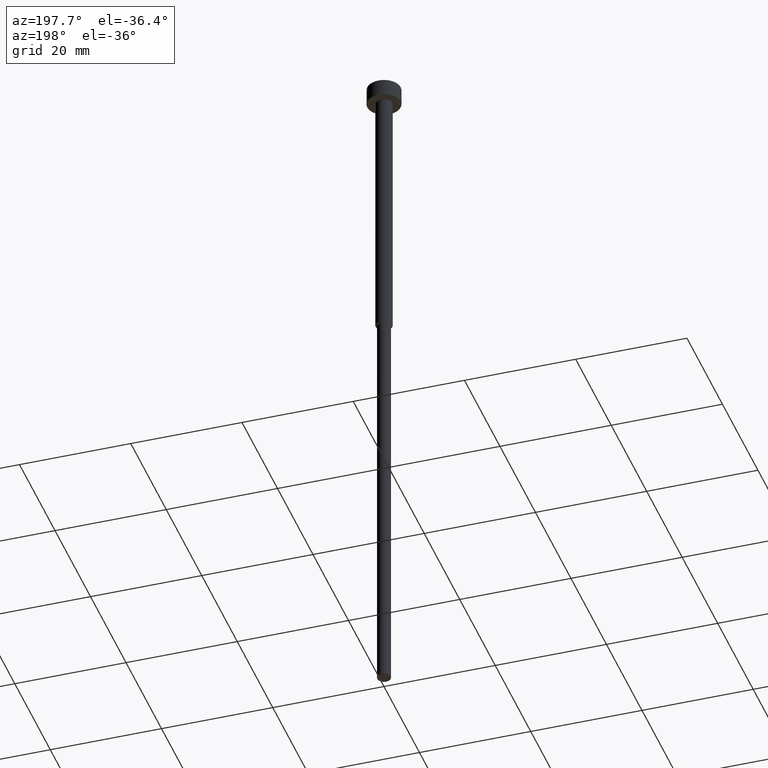
[diagram: clean part render]
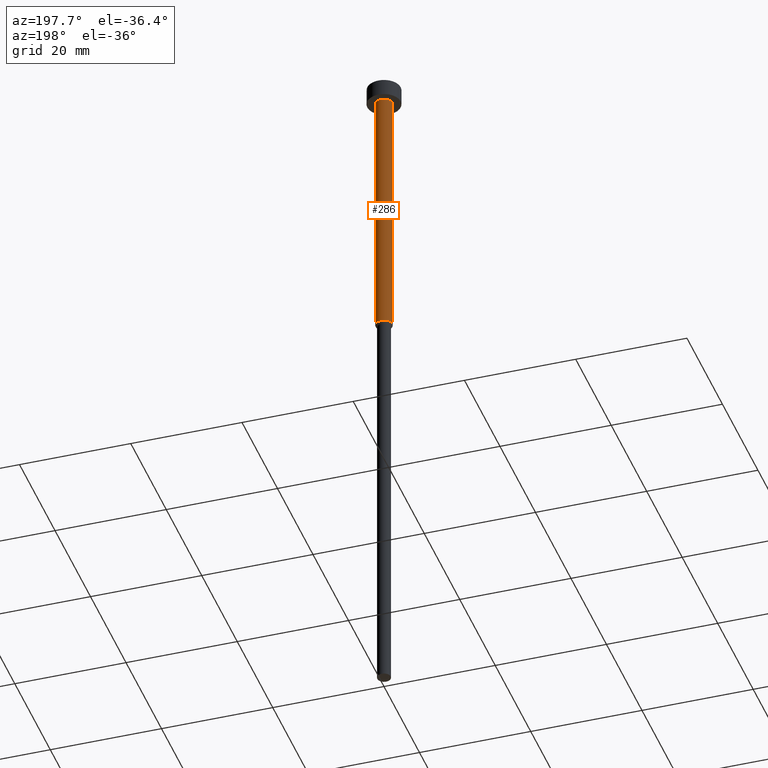
[diagram: same view with one face highlighted and labeled with its STEP entity id]
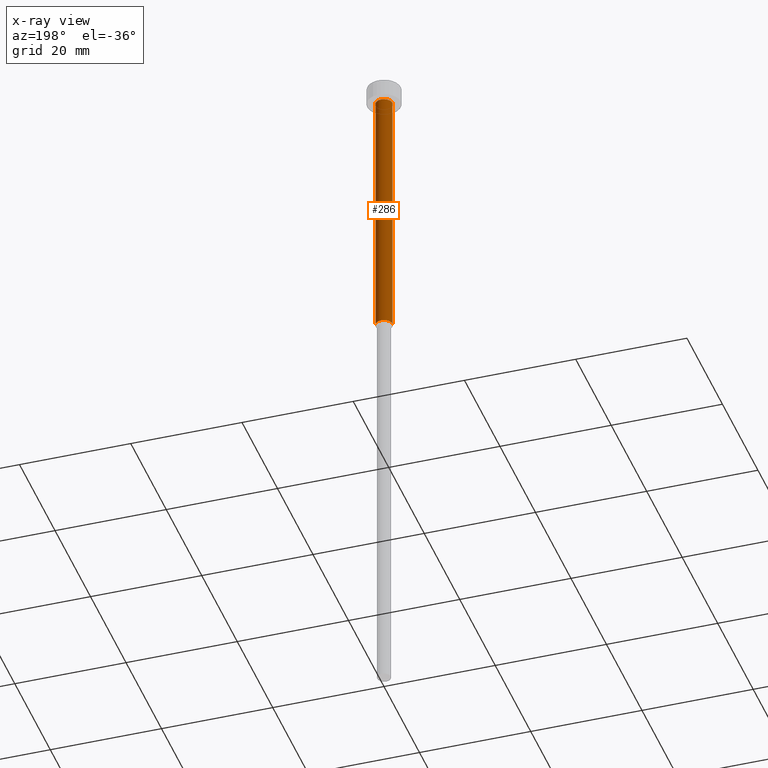
[diagram: x-ray of the same camera — body ghosted, the highlighted face saturated]
A machine part, auxiliary view. The second image highlights one B-rep face of the part: STEP entity #286.
The next image is the same camera in x-ray: the body ghosted, the highlighted face saturated — about 0% of this face is hidden behind the body in this view.
In plain terms, the highlighted cylindrical surface (edge-blend (fillet) strip) has radius 1.5 mm, axis along (-0, -0, 1).
Its self-contained STEP definition (entity closure, byte-faithful):
#1 = AXIS2_PLACEMENT_3D ( 'NONE', #103, #238, #317 ) ;
#7 = VECTOR ( 'NONE', #93, 1000.000000000000000 ) ;
#8 = EDGE_CURVE ( 'NONE', #291, #344, #237, .T. ) ;
#27 = DIRECTION ( 'NONE',  ( -0.000000000000000000, -0.000000000000000000, 1.000000000000000000 ) ) ;
#34 = CARTESIAN_POINT ( 'NONE',  ( 1.500000000000000000, 0.000000000000000000, 0.000000000000000000 ) ) ;
#45 = ORIENTED_EDGE ( 'NONE', *, *, #314, .F. ) ;
#93 = DIRECTION ( 'NONE',  ( -0.000000000000000000, -0.000000000000000000, 1.000000000000000000 ) ) ;
#103 = CARTESIAN_POINT ( 'NONE',  ( 0.000000000000000000, 0.000000000000000000, -3.000000000000000888 ) ) ;
#113 = DIRECTION ( 'NONE',  ( 1.000000000000000000, 0.000000000000000000, 0.000000000000000000 ) ) ;
#115 = ORIENTED_EDGE ( 'NONE', *, *, #171, .T. ) ;
#141 = VERTEX_POINT ( 'NONE', #305 ) ;
#171 = EDGE_CURVE ( 'NONE', #141, #291, #287, .T. ) ;
#180 = VERTEX_POINT ( 'NONE', #189 ) ;
#189 = CARTESIAN_POINT ( 'NONE',  ( 1.500000000000000000, 0.000000000000000000, -3.000000000000000888 ) ) ;
#190 = CYLINDRICAL_SURFACE ( 'NONE', #230, 1.500000000000000000 ) ;
#194 = CARTESIAN_POINT ( 'NONE',  ( 0.000000000000000000, 0.000000000000000000, -50.00000000000000000 ) ) ;
#208 = VECTOR ( 'NONE', #292, 1000.000000000000000 ) ;
#213 = ORIENTED_EDGE ( 'NONE', *, *, #247, .F. ) ;
#230 = AXIS2_PLACEMENT_3D ( 'NONE', #283, #258, #113 ) ;
#237 = LINE ( 'NONE', #318, #7 ) ;
#238 = DIRECTION ( 'NONE',  ( -0.000000000000000000, -0.000000000000000000, 1.000000000000000000 ) ) ;
#247 = EDGE_CURVE ( 'NONE', #180, #344, #349, .T. ) ;
#249 = AXIS2_PLACEMENT_3D ( 'NONE', #194, #27, #281 ) ;
#258 = DIRECTION ( 'NONE',  ( -0.000000000000000000, -0.000000000000000000, 1.000000000000000000 ) ) ;
#259 = CARTESIAN_POINT ( 'NONE',  ( -1.500000000000000000, 1.836970198721029934E-16, -3.000000000000000888 ) ) ;
#281 = DIRECTION ( 'NONE',  ( 1.000000000000000000, 0.000000000000000000, 0.000000000000000000 ) ) ;
#283 = CARTESIAN_POINT ( 'NONE',  ( 0.000000000000000000, 0.000000000000000000, 0.000000000000000000 ) ) ;
#284 = LINE ( 'NONE', #34, #208 ) ;
#286 = ADVANCED_FACE ( 'NONE', ( #347 ), #190, .T. ) ;
#287 = CIRCLE ( 'NONE', #249, 1.500000000000000000 ) ;
#291 = VERTEX_POINT ( 'NONE', #308 ) ;
#292 = DIRECTION ( 'NONE',  ( -0.000000000000000000, -0.000000000000000000, 1.000000000000000000 ) ) ;
#295 = ORIENTED_EDGE ( 'NONE', *, *, #8, .T. ) ;
#297 = EDGE_LOOP ( 'NONE', ( #115, #295, #213, #45 ) ) ;
#305 = CARTESIAN_POINT ( 'NONE',  ( 1.500000000000000000, 0.000000000000000000, -50.00000000000000000 ) ) ;
#308 = CARTESIAN_POINT ( 'NONE',  ( -1.500000000000000000, 1.836970198721029934E-16, -50.00000000000000000 ) ) ;
#314 = EDGE_CURVE ( 'NONE', #141, #180, #284, .T. ) ;
#317 = DIRECTION ( 'NONE',  ( 1.000000000000000000, 0.000000000000000000, 0.000000000000000000 ) ) ;
#318 = CARTESIAN_POINT ( 'NONE',  ( -1.500000000000000000, 1.836970198721029934E-16, 0.000000000000000000 ) ) ;
#344 = VERTEX_POINT ( 'NONE', #259 ) ;
#347 = FACE_OUTER_BOUND ( 'NONE', #297, .T. ) ;
#349 = CIRCLE ( 'NONE', #1, 1.500000000000000000 ) ;